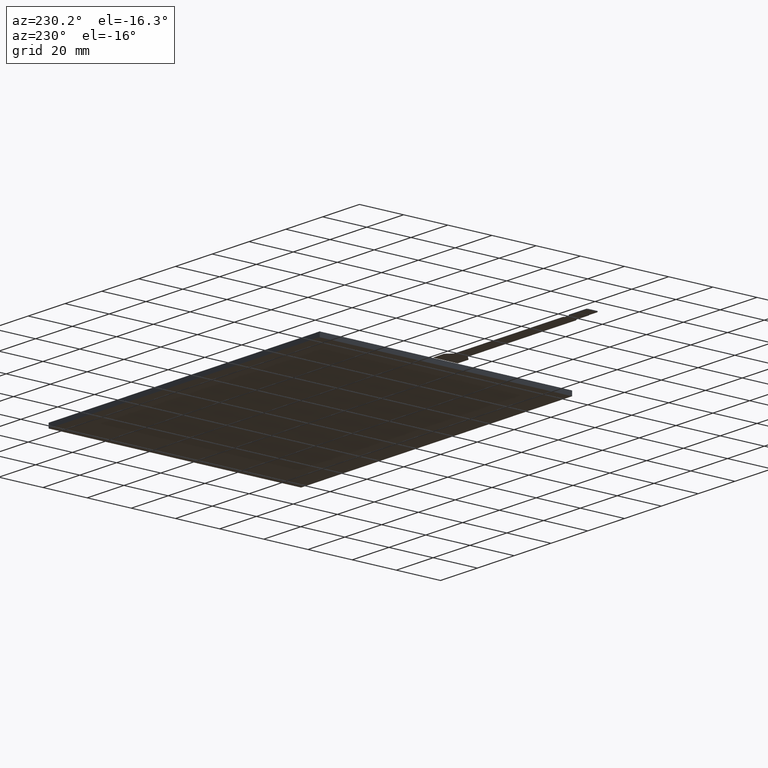
[diagram: clean part render]
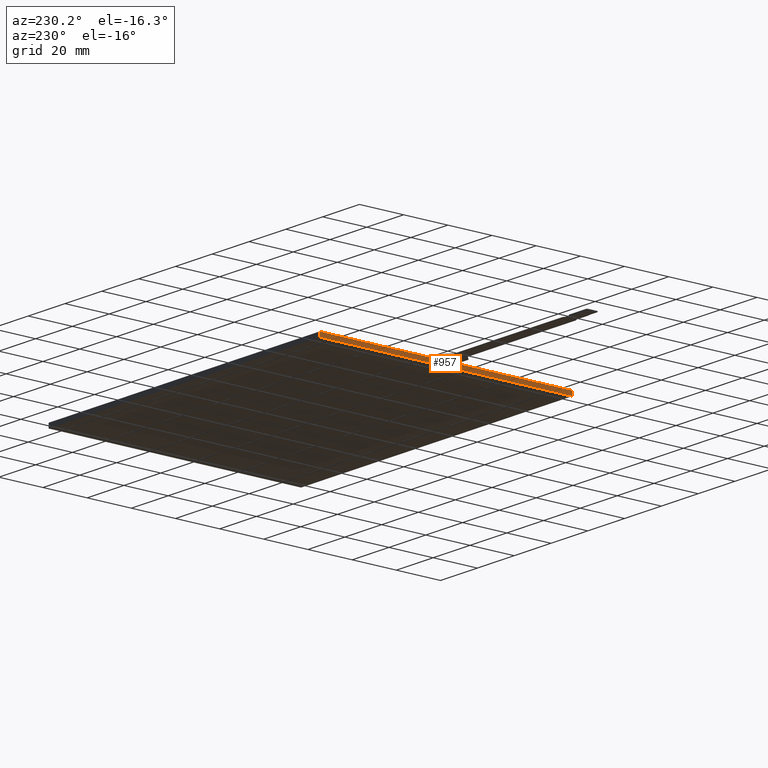
[diagram: same view with one face highlighted and labeled with its STEP entity id]
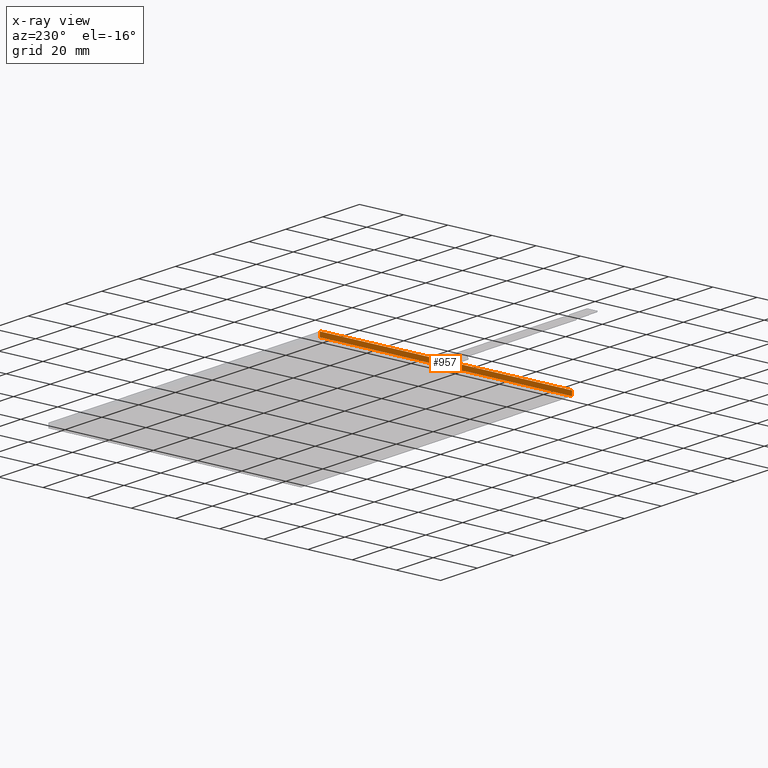
[diagram: x-ray of the same camera — body ghosted, the highlighted face saturated]
A machine part, auxiliary view. The second image highlights one B-rep face of the part: STEP entity #957.
The next image is the same camera in x-ray: the body ghosted, the highlighted face saturated — about 0% of this face is hidden behind the body in this view.
In plain terms, the highlighted planar face has unit normal (-1, -0, 0).
Its self-contained STEP definition (entity closure, byte-faithful):
#47=FACE_OUTER_BOUND('',#101,.T.);
#101=EDGE_LOOP('',(#673,#674,#675,#676));
#168=LINE('',#1395,#294);
#171=LINE('',#1401,#297);
#172=LINE('',#1403,#298);
#173=LINE('',#1404,#299);
#294=VECTOR('',#1131,10.);
#297=VECTOR('',#1136,10.);
#298=VECTOR('',#1137,10.);
#299=VECTOR('',#1138,10.);
#412=VERTEX_POINT('',#1392);
#413=VERTEX_POINT('',#1394);
#415=VERTEX_POINT('',#1400);
#416=VERTEX_POINT('',#1402);
#512=EDGE_CURVE('',#412,#413,#168,.T.);
#515=EDGE_CURVE('',#412,#415,#171,.T.);
#516=EDGE_CURVE('',#416,#415,#172,.T.);
#517=EDGE_CURVE('',#413,#416,#173,.T.);
#673=ORIENTED_EDGE('',*,*,#512,.F.);
#674=ORIENTED_EDGE('',*,*,#515,.T.);
#675=ORIENTED_EDGE('',*,*,#516,.F.);
#676=ORIENTED_EDGE('',*,*,#517,.F.);
#911=PLANE('',#1030);
#957=ADVANCED_FACE('',(#47),#911,.T.);
#1030=AXIS2_PLACEMENT_3D('',#1399,#1134,#1135);
#1131=DIRECTION('',(2.3311769545935E-16,-1.,0.));
#1134=DIRECTION('center_axis',(-1.,-2.3311769545935E-16,0.));
#1135=DIRECTION('ref_axis',(-2.3311769545935E-16,1.,0.));
#1136=DIRECTION('',(0.,0.,-1.));
#1137=DIRECTION('',(-2.3311769545935E-16,1.,0.));
#1138=DIRECTION('',(0.,0.,-1.));
#1392=CARTESIAN_POINT('',(-74.69,56.93,0.));
#1394=CARTESIAN_POINT('',(-74.69,-57.37,0.));
#1395=CARTESIAN_POINT('',(-74.69,56.93,0.));
#1399=CARTESIAN_POINT('Origin',(-74.69,-57.37,0.));
#1400=CARTESIAN_POINT('',(-74.69,56.93,-2.1));
#1401=CARTESIAN_POINT('',(-74.69,56.93,0.));
#1402=CARTESIAN_POINT('',(-74.69,-57.37,-2.1));
#1403=CARTESIAN_POINT('',(-74.69,56.93,-2.1));
#1404=CARTESIAN_POINT('',(-74.69,-57.37,0.));